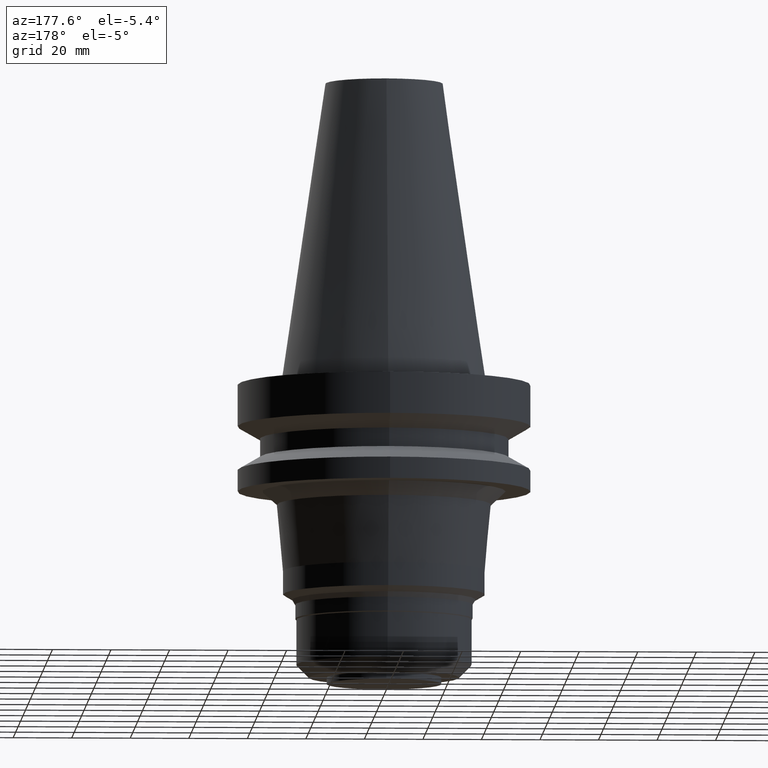
[diagram: clean part render]
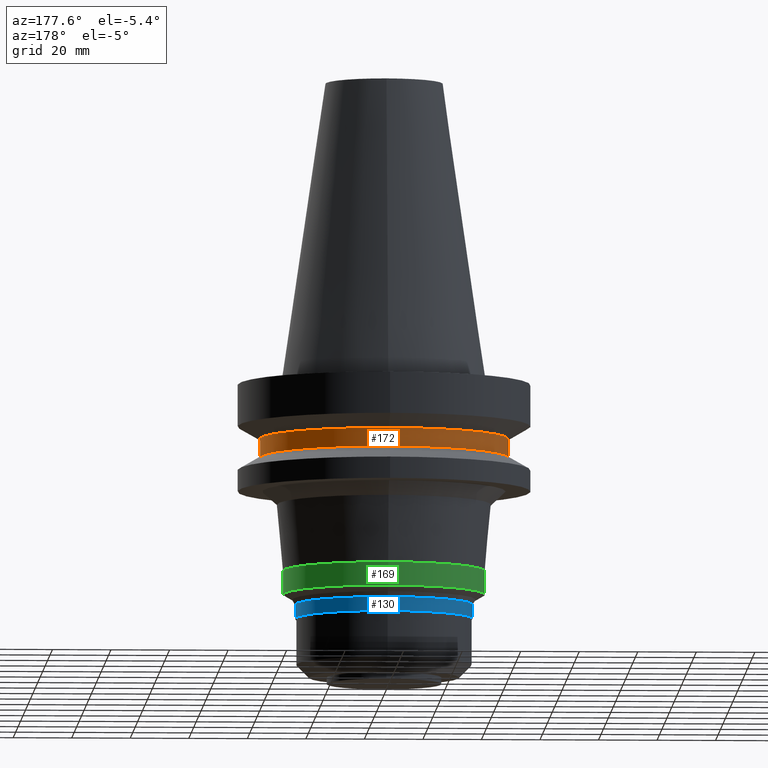
[diagram: same view with three faces highlighted in distinct colors, each labeled with its STEP entity id]
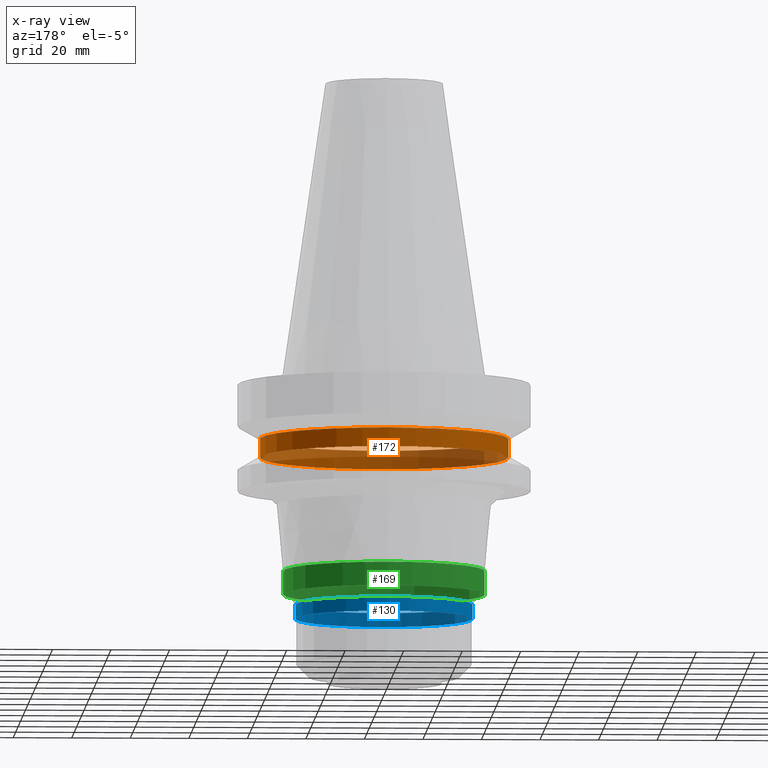
[diagram: x-ray of the same camera — body ghosted, the three highlighted faces saturated]
A machine part, auxiliary view with three faces highlighted in distinct colors.
The next image is the same camera in x-ray (body ghosted, the three faces saturated) — at least one of them is partly hidden behind the body in this view.
Their STEP definitions:

[orange] entity #172 — the highlighted cylindrical surface (bore or boss wall) has radius 42.5 mm, axis along (0, 0, -1).
#107=EDGE_CURVE('Unnamed[1]',#254,#254,#255,.T.);
#140=EDGE_CURVE('Unnamed[1]',#307,#307,#308,.T.);
#172=ADVANCED_FACE('Unnamed[1]',(#357,#358),#359,.T.);
#254=VERTEX_POINT('',#450);
#255=CIRCLE('',#451,42.5);
#307=VERTEX_POINT('',#516);
#308=CIRCLE('',#517,42.5);
#357=FACE_BOUND('',#578,.T.);
#358=FACE_BOUND('',#579,.T.);
#359=CYLINDRICAL_SURFACE('',#580,42.5);
#450=CARTESIAN_POINT('',(1.2264915470779E-015,42.5,-20.03012702));
#451=AXIS2_PLACEMENT_3D('',#655,#656,#657);
#516=CARTESIAN_POINT('',(1.61468902694397E-015,42.5,-26.3698729800001));
#517=AXIS2_PLACEMENT_3D('',#715,#716,#717);
#578=EDGE_LOOP('',(#772));
#579=EDGE_LOOP('',(#773));
#580=AXIS2_PLACEMENT_3D('',#774,#775,#776);
#655=CARTESIAN_POINT('',(1.2264915470779E-015,2.45298309415579E-015,-20.03012702));
#656=DIRECTION('',(6.12323399573677E-017,1.22464679914763E-016,-1.0));
#657=DIRECTION('',(-1.23259516440783E-032,1.0,1.22464679914763E-016));
#715=CARTESIAN_POINT('',(1.61468902694397E-015,3.22937805388794E-015,-26.3698729800001));
#716=DIRECTION('',(6.12323399573677E-017,1.22464679914763E-016,-1.0));
#717=DIRECTION('',(-1.23259516440783E-032,1.0,1.22464679914763E-016));
#772=ORIENTED_EDGE('',*,*,#140,.F.);
#773=ORIENTED_EDGE('',*,*,#107,.T.);
#774=CARTESIAN_POINT('',(1.42059028701093E-015,2.84118057402186E-015,-23.2));
#775=DIRECTION('',(6.12323399573677E-017,1.22464679914763E-016,-1.0));
#776=DIRECTION('',(-1.23259516440783E-032,1.0,1.22464679914763E-016));

[blue] entity #130 — the highlighted cylindrical surface (bore or boss wall) has radius 30.35 mm, axis along (0, 0, -1).
#78=EDGE_CURVE('Unnamed[1]',#210,#210,#211,.T.);
#109=EDGE_CURVE('Unnamed[1]',#257,#257,#258,.T.);
#130=ADVANCED_FACE('Unnamed[1]',(#290,#291),#292,.T.);
#210=VERTEX_POINT('',#395);
#211=CIRCLE('',#396,30.3500000000003);
#257=VERTEX_POINT('',#454);
#258=CIRCLE('',#455,30.3499999999999);
#290=FACE_BOUND('',#495,.T.);
#291=FACE_BOUND('',#496,.T.);
#292=CYLINDRICAL_SURFACE('',#497,30.3500000000001);
#395=CARTESIAN_POINT('',(4.7057484428137E-015,30.3500000000003,-76.8507041555169));
#396=AXIS2_PLACEMENT_3D('',#609,#610,#611);
#454=CARTESIAN_POINT('',(4.999375849645E-015,30.3499999999999,-81.6460036171369));
#455=AXIS2_PLACEMENT_3D('',#658,#659,#660);
#495=EDGE_LOOP('',(#695));
#496=EDGE_LOOP('',(#696));
#497=AXIS2_PLACEMENT_3D('',#697,#698,#699);
#609=CARTESIAN_POINT('',(4.7057484428137E-015,9.4114968856274E-015,-76.8507041555169));
#610=DIRECTION('',(6.12323399573677E-017,1.22464679914781E-016,-1.0));
#611=DIRECTION('',(-1.23259516440805E-032,1.0,1.22464679914781E-016));
#658=CARTESIAN_POINT('',(4.999375849645E-015,9.99875169928999E-015,-81.6460036171369));
#659=DIRECTION('',(6.12323399573677E-017,1.22464679914783E-016,-1.0));
#660=DIRECTION('',(-1.23259516440807E-032,1.0,1.22464679914783E-016));
#695=ORIENTED_EDGE('',*,*,#109,.F.);
#696=ORIENTED_EDGE('',*,*,#78,.T.);
#697=CARTESIAN_POINT('',(4.85256214622935E-015,9.70512429245869E-015,-79.2483538863269));
#698=DIRECTION('',(6.12323399573677E-017,1.22464679914782E-016,-1.0));
#699=DIRECTION('',(-1.23259516440806E-032,1.0,1.22464679914782E-016));

[green] entity #169 — the highlighted cylindrical surface (bore or boss wall) has radius 34.5 mm, axis along (0, 0, -1).
#68=EDGE_CURVE('Unnamed[1]',#195,#195,#196,.T.);
#156=EDGE_CURVE('Unnamed[1]',#332,#332,#333,.T.);
#169=ADVANCED_FACE('Unnamed[1]',(#352,#353),#354,.T.);
#195=VERTEX_POINT('',#376);
#196=CIRCLE('',#377,34.4999999999997);
#332=VERTEX_POINT('',#547);
#333=CIRCLE('',#548,34.5000000000001);
#352=FACE_BOUND('',#572,.T.);
#353=FACE_BOUND('',#573,.T.);
#354=CYLINDRICAL_SURFACE('',#574,34.4999999999999);
#376=CARTESIAN_POINT('',(4.48833051887502E-015,34.4999999999997,-73.2999999999996));
#377=AXIS2_PLACEMENT_3D('',#592,#593,#594);
#547=CARTESIAN_POINT('',(3.99847179921601E-015,34.5000000000001,-65.2999999999985));
#548=AXIS2_PLACEMENT_3D('',#744,#745,#746);
#572=EDGE_LOOP('',(#766));
#573=EDGE_LOOP('',(#767));
#574=AXIS2_PLACEMENT_3D('',#768,#769,#770);
#592=CARTESIAN_POINT('',(4.48833051887503E-015,8.97666103775005E-015,-73.2999999999996));
#593=DIRECTION('',(6.12323399573677E-017,1.22464679914717E-016,-1.0));
#594=DIRECTION('',(-1.23259516440784E-032,1.0,1.22464679914717E-016));
#744=CARTESIAN_POINT('',(3.99847179921601E-015,7.99694359843203E-015,-65.2999999999985));
#745=DIRECTION('',(6.12323399573677E-017,1.22464679914716E-016,-1.0));
#746=DIRECTION('',(-1.23259516440783E-032,1.0,1.22464679914716E-016));
#766=ORIENTED_EDGE('',*,*,#68,.F.);
#767=ORIENTED_EDGE('',*,*,#156,.T.);
#768=CARTESIAN_POINT('',(4.24340115904552E-015,8.48680231809104E-015,-69.299999999999));
#769=DIRECTION('',(6.12323399573677E-017,1.22464679914717E-016,-1.0));
#770=DIRECTION('',(-1.23259516440783E-032,1.0,1.22464679914717E-016));